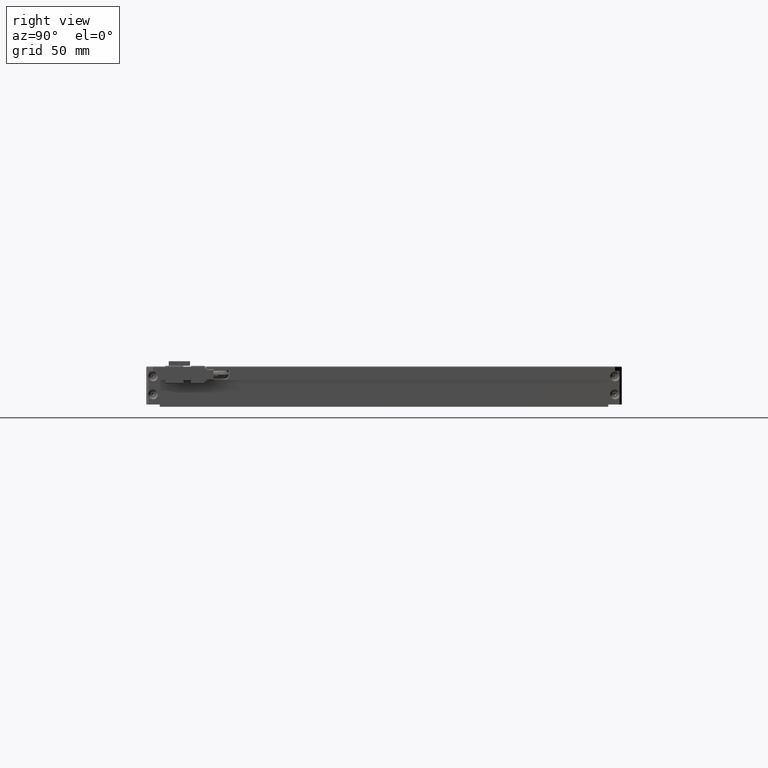
[diagram: clean part render]
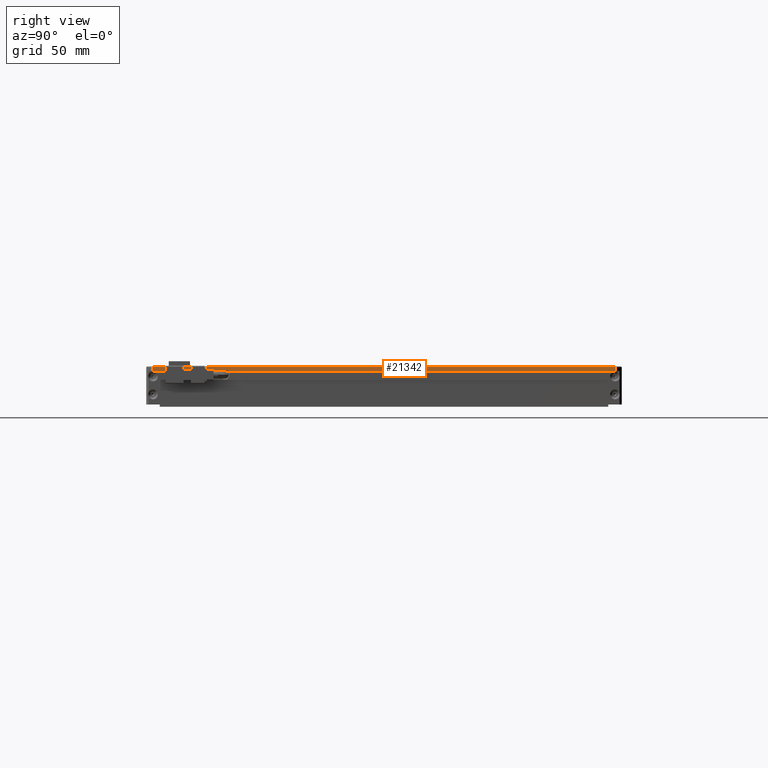
[diagram: same view with one face highlighted and labeled with its STEP entity id]
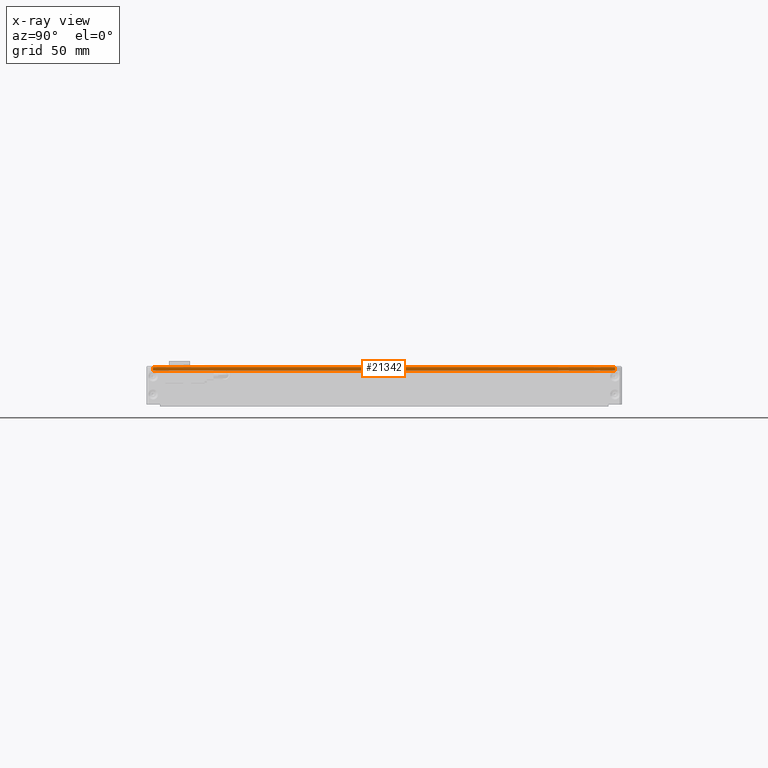
[diagram: x-ray of the same camera — body ghosted, the highlighted face saturated]
A machine part, right view. The second image highlights one B-rep face of the part: STEP entity #21342.
The next image is the same camera in x-ray: the body ghosted, the highlighted face saturated — about 0% of this face is hidden behind the body in this view.
In plain terms, the highlighted planar face has unit normal (-1, -0, 0).
Its self-contained STEP definition (entity closure, byte-faithful):
#437 = ORIENTED_EDGE ( 'NONE', *, *, #10224, .F. ) ;
#1297 = CARTESIAN_POINT ( 'NONE',  ( 133.6657505824761400, -136.3787539827808100, 1.999999999976353100 ) ) ;
#1370 = CARTESIAN_POINT ( 'NONE',  ( 133.6657505824761400, -136.3787539827808100, 1.699999999976330700 ) ) ;
#1534 = CARTESIAN_POINT ( 'NONE',  ( 133.6657505824761100, 69.62124601721916400, 1.699999999976318900 ) ) ;
#1636 = LINE ( 'NONE', #7204, #20631 ) ;
#2626 = FACE_OUTER_BOUND ( 'NONE', #14666, .T. ) ;
#3069 = ORIENTED_EDGE ( 'NONE', *, *, #11807, .T. ) ;
#5739 = VERTEX_POINT ( 'NONE', #1534 ) ;
#6218 = PLANE ( 'NONE',  #9158 ) ;
#7053 = DIRECTION ( 'NONE',  ( 0.0000000000000000000, 0.0000000000000000000, 1.000000000000000000 ) ) ;
#7100 = EDGE_CURVE ( 'NONE', #7842, #18027, #11616, .T. ) ;
#7204 = CARTESIAN_POINT ( 'NONE',  ( 133.6657505824760800, 69.62124601721916400, 1.999999999976353100 ) ) ;
#7448 = CARTESIAN_POINT ( 'NONE',  ( 133.6657505824761400, 72.62124601721916400, -2.364688306277784600E-011 ) ) ;
#7842 = VERTEX_POINT ( 'NONE', #22521 ) ;
#7944 = DIRECTION ( 'NONE',  ( 2.694716079187273400E-016, -1.000000000000000000, 0.0000000000000000000 ) ) ;
#9158 = AXIS2_PLACEMENT_3D ( 'NONE', #1297, #20084, #7944 ) ;
#9532 = CARTESIAN_POINT ( 'NONE',  ( 133.6657505824761100, -136.3787539827808100, 1.699999999976331600 ) ) ;
#9978 = VECTOR ( 'NONE', #19729, 1000.000000000000000 ) ;
#10224 = EDGE_CURVE ( 'NONE', #7842, #13239, #19417, .T. ) ;
#10880 = ORIENTED_EDGE ( 'NONE', *, *, #21716, .F. ) ;
#11616 = LINE ( 'NONE', #7448, #9978 ) ;
#11807 = EDGE_CURVE ( 'NONE', #18027, #5739, #1636, .T. ) ;
#13239 = VERTEX_POINT ( 'NONE', #9532 ) ;
#14666 = EDGE_LOOP ( 'NONE', ( #10880, #437, #20177, #3069 ) ) ;
#14711 = CARTESIAN_POINT ( 'NONE',  ( 133.6657505824761400, -136.3787539827808100, 1.999999999976353100 ) ) ;
#17262 = VECTOR ( 'NONE', #18347, 1000.000000000000000 ) ;
#17419 = CARTESIAN_POINT ( 'NONE',  ( 133.6657505824761100, 69.62124601721913600, -2.364720832342959200E-011 ) ) ;
#18027 = VERTEX_POINT ( 'NONE', #17419 ) ;
#18347 = DIRECTION ( 'NONE',  ( -2.694716079187273400E-016, 1.000000000000000000, -0.0000000000000000000 ) ) ;
#18897 = LINE ( 'NONE', #1370, #17262 ) ;
#19417 = LINE ( 'NONE', #14711, #20244 ) ;
#19729 = DIRECTION ( 'NONE',  ( 0.0000000000000000000, 1.000000000000000000, 0.0000000000000000000 ) ) ;
#19903 = DIRECTION ( 'NONE',  ( 0.0000000000000000000, 0.0000000000000000000, 1.000000000000000000 ) ) ;
#20084 = DIRECTION ( 'NONE',  ( -1.000000000000000000, -2.694716079187273400E-016, 0.0000000000000000000 ) ) ;
#20177 = ORIENTED_EDGE ( 'NONE', *, *, #7100, .T. ) ;
#20244 = VECTOR ( 'NONE', #19903, 1000.000000000000000 ) ;
#20631 = VECTOR ( 'NONE', #7053, 1000.000000000000000 ) ;
#21342 = ADVANCED_FACE ( 'NONE', ( #2626 ), #6218, .F. ) ;
#21716 = EDGE_CURVE ( 'NONE', #13239, #5739, #18897, .T. ) ;
#22521 = CARTESIAN_POINT ( 'NONE',  ( 133.6657505824761400, -136.3787539827808100, -2.364753358408133700E-011 ) ) ;